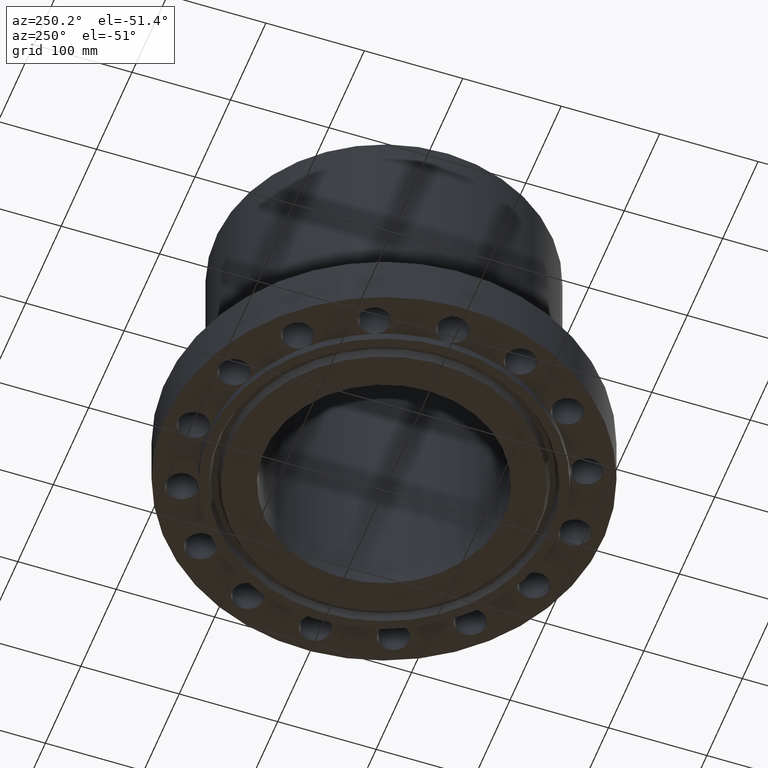
[diagram: clean part render]
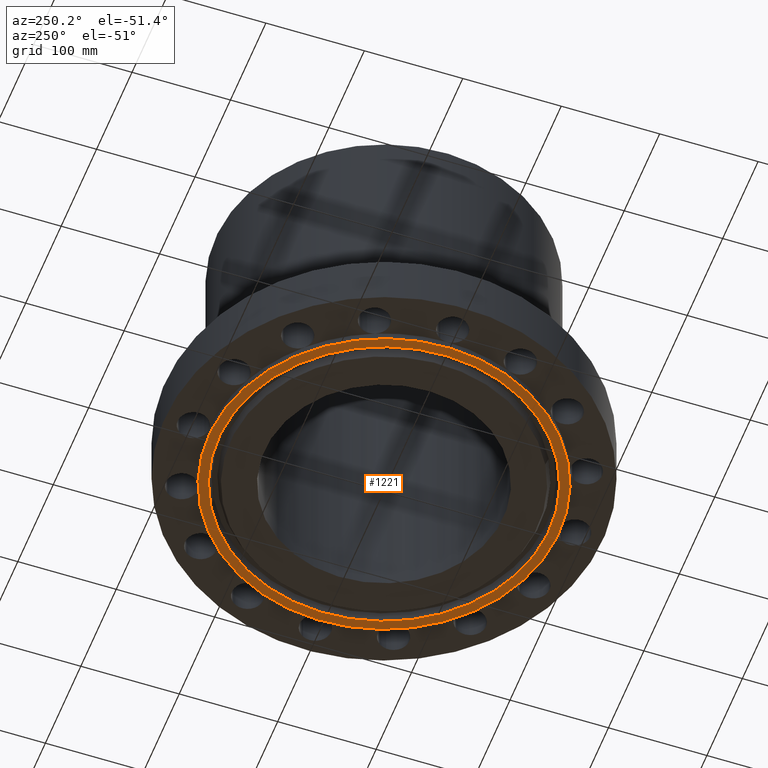
[diagram: same view with one face highlighted and labeled with its STEP entity id]
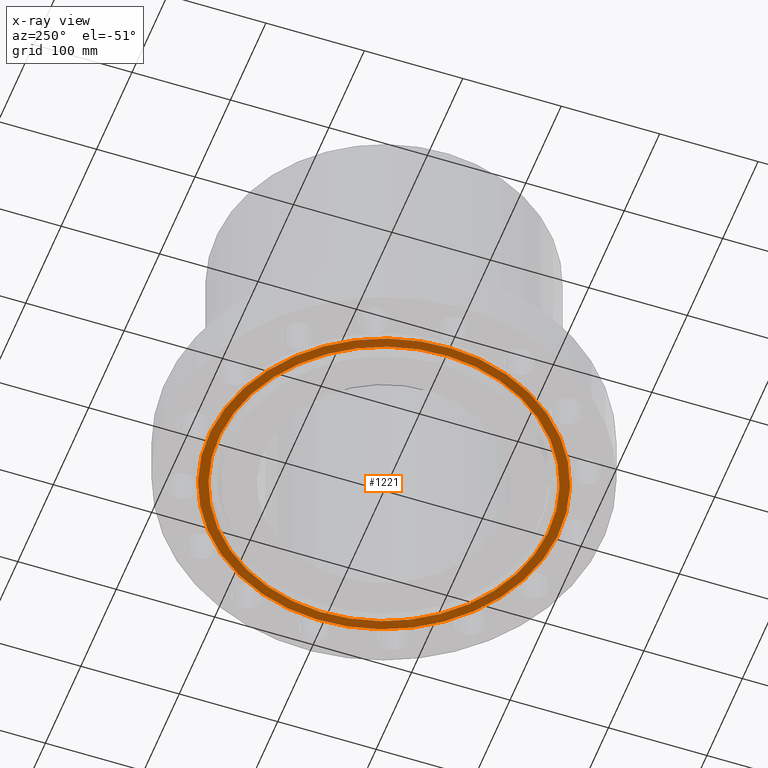
[diagram: x-ray of the same camera — body ghosted, the highlighted face saturated]
A machine part, auxiliary view. The second image highlights one B-rep face of the part: STEP entity #1221.
The next image is the same camera in x-ray: the body ghosted, the highlighted face saturated — about 0% of this face is hidden behind the body in this view.
In plain terms, the highlighted planar face has unit normal (0, 0, -1).
Its self-contained STEP definition (entity closure, byte-faithful):
#979=AXIS2_PLACEMENT_3D('Plane Axis2P3D',#976,#977,#978) ;
#1170=AXIS2_PLACEMENT_3D('Circle Axis2P3D',#1168,#1169,$) ;
#1189=AXIS2_PLACEMENT_3D('Circle Axis2P3D',#1187,#1188,$) ;
#1201=AXIS2_PLACEMENT_3D('Circle Axis2P3D',#1199,#1200,$) ;
#1210=AXIS2_PLACEMENT_3D('Circle Axis2P3D',#1208,#1209,$) ;
#976=CARTESIAN_POINT('Axis2P3D Location',(0.,6.14050000002,-0.313000000001)) ;
#1165=CARTESIAN_POINT('Vertex',(-3.16876309742,-5.80038194284,-0.313000000001)) ;
#1168=CARTESIAN_POINT('Axis2P3D Location',(0.,0.,-0.313000000001)) ;
#1172=CARTESIAN_POINT('Vertex',(3.16876309742,5.80038194284,-0.313000000001)) ;
#1187=CARTESIAN_POINT('Axis2P3D Location',(0.,0.,-0.313000000001)) ;
#1199=CARTESIAN_POINT('Axis2P3D Location',(0.,0.,-0.313000000001)) ;
#1203=CARTESIAN_POINT('Vertex',(-3.35597877024,-6.14307793326,-0.313000000001)) ;
#1205=CARTESIAN_POINT('Vertex',(3.35597877024,6.14307793326,-0.313000000001)) ;
#1208=CARTESIAN_POINT('Axis2P3D Location',(0.,0.,-0.313000000001)) ;
#977=DIRECTION('Axis2P3D Direction',(0.,0.,-0.0393700787402)) ;
#978=DIRECTION('Axis2P3D XDirection',(0.0393700787402,0.,0.)) ;
#1169=DIRECTION('Axis2P3D Direction',(0.,0.,-0.0393700787402)) ;
#1188=DIRECTION('Axis2P3D Direction',(0.,0.,-0.0393700787402)) ;
#1200=DIRECTION('Axis2P3D Direction',(0.,0.,-0.0393700787402)) ;
#1209=DIRECTION('Axis2P3D Direction',(0.,0.,-0.0393700787402)) ;
#1214=ORIENTED_EDGE('',*,*,#1207,.T.) ;
#1215=ORIENTED_EDGE('',*,*,#1212,.T.) ;
#1218=ORIENTED_EDGE('',*,*,#1191,.F.) ;
#1219=ORIENTED_EDGE('',*,*,#1174,.F.) ;
#1220=FACE_BOUND('',#1217,.T.) ;
#1221=ADVANCED_FACE('PartBody',(#1216,#1220),#980,.T.) ;
#1171=CIRCLE('generated circle',#1170,6.60950000003) ;
#1190=CIRCLE('generated circle',#1189,6.60950000003) ;
#1202=CIRCLE('generated circle',#1201,7.00000000003) ;
#1211=CIRCLE('generated circle',#1210,7.00000000003) ;
#1174=EDGE_CURVE('',#1166,#1173,#1171,.T.) ;
#1191=EDGE_CURVE('',#1173,#1166,#1190,.T.) ;
#1207=EDGE_CURVE('',#1204,#1206,#1202,.T.) ;
#1212=EDGE_CURVE('',#1206,#1204,#1211,.T.) ;
#1213=EDGE_LOOP('',(#1214,#1215)) ;
#1217=EDGE_LOOP('',(#1218,#1219)) ;
#1216=FACE_OUTER_BOUND('',#1213,.T.) ;
#980=PLANE('',#979) ;
#1166=VERTEX_POINT('',#1165) ;
#1173=VERTEX_POINT('',#1172) ;
#1204=VERTEX_POINT('',#1203) ;
#1206=VERTEX_POINT('',#1205) ;